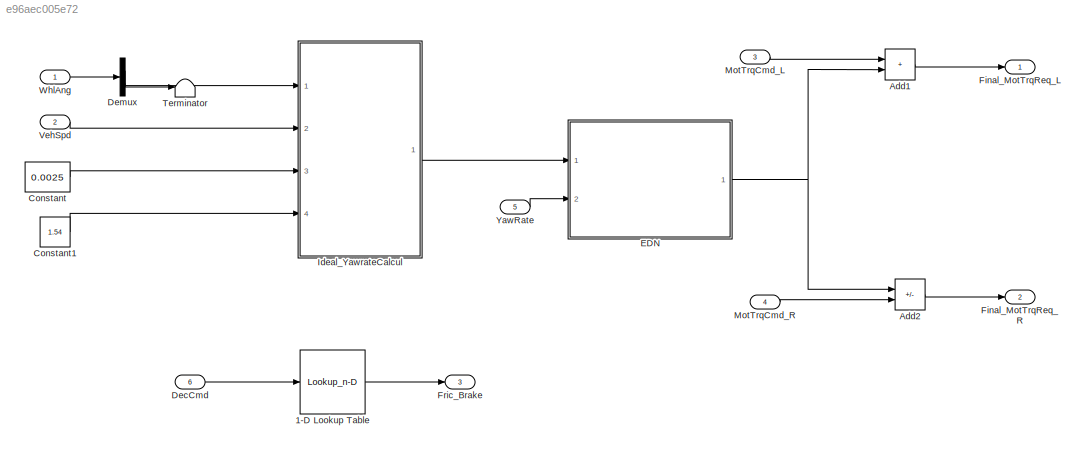
MODEL slx_e96aec005e72
KIND model
CONFIG AbsTol = auto
CONFIG EnableMultiTasking = off
CONFIG FixedStep = auto
CONFIG MaxStep = auto
CONFIG MinStep = auto
CONFIG RelTol = 1e-3
CONFIG SampleTimeConstraint = Unconstrained
CONFIG Solver = VariableStepAuto
CONFIG SolverName = VariableStepAuto
CONFIG StartTime = 0.0
CONFIG StopTime = 10.0
BLOCK [Lookup_n-D] 1-D Lookup Table
  BreakpointsForDimension1 = [0 , 0.2,0.4,0.6,0.8,1.0]
  InternalRulePriority = Speed
  NumberOfTableDimensions = 1
  Ports = [1, 1]
  RndMeth = Simplest
  Table = [0 , 0.2,0.4,0.6,0.8,1.0]*60
BLOCK [Sum] Add1
  IconShape = rectangular
  Ports = [2, 1]
BLOCK [Sum] Add2
  IconShape = rectangular
  Inputs = -+
  Ports = [2, 1]
BLOCK [Constant] Constant
  Value = 0.0025
BLOCK [Constant] Constant1
  Value = 1.54
BLOCK [Inport] DecCmd
  Port = 6
BLOCK [Demux] Demux
  Outputs = 2
  Ports = [1, 2]
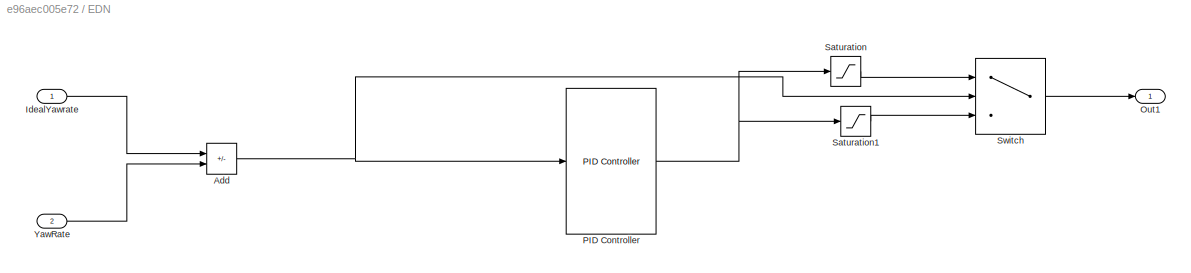
BLOCK [SubSystem] EDN
  Ports = [2, 1]
  RequestExecContextInheritance = off
BLOCK [Sum] EDN/Add
  IconShape = rectangular
  Inputs = +-
  Ports = [2, 1]
BLOCK [Inport] EDN/IdealYawrate
BLOCK [Outport] EDN/Out1
BLOCK [Reference] EDN/PID Controller  REF=simulink/Continuous/PID Controller
  Ports = [1, 1]
  SourceBlock = simulink/Continuous/PID Controller
  SourceProductBaseCode = SL
  SourceType = PID 1dof
BLOCK [Saturate] EDN/Saturation
  LowerLimit = 0
  UpperLimit = inf
BLOCK [Saturate] EDN/Saturation1
  LowerLimit = -inf
  UpperLimit = 0
BLOCK [Switch] EDN/Switch
  Criteria = u2 > Threshold
  InputSameDT = off
  SaturateOnIntegerOverflow = off
BLOCK [Inport] EDN/YawRate
  Port = 2
BLOCK [Outport] Final_MotTrqReq_L
BLOCK [Outport] Final_MotTrqReq_R
  Port = 2
BLOCK [Outport] Fric_Brake
  Port = 3
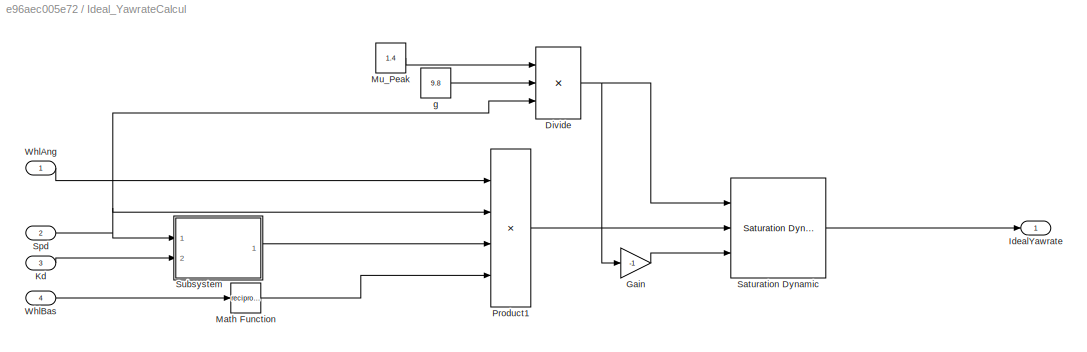
BLOCK [SubSystem] Ideal_YawrateCalcul
  Ports = [4, 1]
  RequestExecContextInheritance = off
BLOCK [Product] Ideal_YawrateCalcul/Divide
  Inputs = **/
  Ports = [3, 1]
BLOCK [Gain] Ideal_YawrateCalcul/Gain
  Gain = -1
BLOCK [Outport] Ideal_YawrateCalcul/IdealYawrate
BLOCK [Inport] Ideal_YawrateCalcul/Kd
  Port = 3
BLOCK [Math] Ideal_YawrateCalcul/Math Function
  Operator = reciprocal
  Ports = [1, 1]
BLOCK [Constant] Ideal_YawrateCalcul/Mu_Peak
  Value = 1.4
BLOCK [Product] Ideal_YawrateCalcul/Product1
  Inputs = 4
  Ports = [4, 1]
BLOCK [Reference] Ideal_YawrateCalcul/Saturation Dynamic  REF=simulink/Discontinuities/Saturation
Dynamic
  Ports = [3, 1]
  SourceBlock = simulink/Discontinuities/Saturation\nDynamic
  SourceProductBaseCode = SL
  SourceType = Saturation Dynamic
BLOCK [Inport] Ideal_YawrateCalcul/Spd
  Port = 2
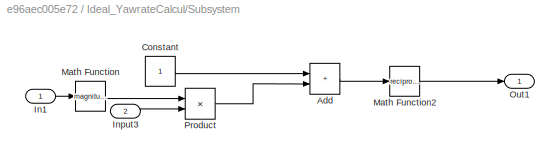
BLOCK [SubSystem] Ideal_YawrateCalcul/Subsystem
  Ports = [2, 1]
  RequestExecContextInheritance = off
BLOCK [Sum] Ideal_YawrateCalcul/Subsystem/Add
  IconShape = rectangular
  Ports = [2, 1]
BLOCK [Constant] Ideal_YawrateCalcul/Subsystem/Constant
BLOCK [Inport] Ideal_YawrateCalcul/Subsystem/In1
BLOCK [Inport] Ideal_YawrateCalcul/Subsystem/Input3
  Port = 2
BLOCK [Math] Ideal_YawrateCalcul/Subsystem/Math Function
  Operator = magnitude^2
  Ports = [1, 1]
BLOCK [Math] Ideal_YawrateCalcul/Subsystem/Math Function2
  Operator = reciprocal
  Ports = [1, 1]
BLOCK [Outport] Ideal_YawrateCalcul/Subsystem/Out1
BLOCK [Product] Ideal_YawrateCalcul/Subsystem/Product
  Ports = [2, 1]
BLOCK [Inport] Ideal_YawrateCalcul/WhlAng
BLOCK [Inport] Ideal_YawrateCalcul/WhlBas
  Port = 4
BLOCK [Constant] Ideal_YawrateCalcul/g
  Value = 9.8
BLOCK [Inport] MotTrqCmd_L
  Port = 3
BLOCK [Inport] MotTrqCmd_R
  Port = 4
BLOCK [Terminator] Terminator
BLOCK [Inport] VehSpd
  Port = 2
BLOCK [Inport] WhlAng
BLOCK [Inport] YawRate
  Port = 5
LINE 1-D Lookup Table:1 -> Fric_Brake:1
LINE Add1:1 -> Final_MotTrqReq_L:1
LINE Add2:1 -> Final_MotTrqReq_R:1
LINE Constant1:1 -> Ideal_YawrateCalcul:4
LINE Constant:1 -> Ideal_YawrateCalcul:3
LINE DecCmd:1 -> 1-D Lookup Table:1
LINE Demux:1 -> Ideal_YawrateCalcul:1
LINE Demux:2 -> Terminator:1
NET EDN/Add:1 -> EDN/PID Controller:1, EDN/Switch:2
LINE EDN/IdealYawrate:1 -> EDN/Add:1
NET EDN/PID Controller:1 -> EDN/Saturation1:1, EDN/Saturation:1
LINE EDN/Saturation1:1 -> EDN/Switch:3
LINE EDN/Saturation:1 -> EDN/Switch:1
LINE EDN/Switch:1 -> EDN/Out1:1
LINE EDN/YawRate:1 -> EDN/Add:2
NET EDN:1 -> Add1:2, Add2:1
NET Ideal_YawrateCalcul/Divide:1 -> Ideal_YawrateCalcul/Gain:1, Ideal_YawrateCalcul/Saturation Dynamic:1
LINE Ideal_YawrateCalcul/Gain:1 -> Ideal_YawrateCalcul/Saturation Dynamic:3
LINE Ideal_YawrateCalcul/Kd:1 -> Ideal_YawrateCalcul/Subsystem:2
LINE Ideal_YawrateCalcul/Math Function:1 -> Ideal_YawrateCalcul/Product1:4
LINE Ideal_YawrateCalcul/Mu_Peak:1 -> Ideal_YawrateCalcul/Divide:1
LINE Ideal_YawrateCalcul/Product1:1 -> Ideal_YawrateCalcul/Saturation Dynamic:2
LINE Ideal_YawrateCalcul/Saturation Dynamic:1 -> Ideal_YawrateCalcul/IdealYawrate:1
NET Ideal_YawrateCalcul/Spd:1 -> Ideal_YawrateCalcul/Divide:3, Ideal_YawrateCalcul/Product1:2, Ideal_YawrateCalcul/Subsystem:1
LINE Ideal_YawrateCalcul/Subsystem/Add:1 -> Ideal_YawrateCalcul/Subsystem/Math Function2:1
LINE Ideal_YawrateCalcul/Subsystem/Constant:1 -> Ideal_YawrateCalcul/Subsystem/Add:1
LINE Ideal_YawrateCalcul/Subsystem/In1:1 -> Ideal_YawrateCalcul/Subsystem/Math Function:1
LINE Ideal_YawrateCalcul/Subsystem/Input3:1 -> Ideal_YawrateCalcul/Subsystem/Product:2
LINE Ideal_YawrateCalcul/Subsystem/Math Function2:1 -> Ideal_YawrateCalcul/Subsystem/Out1:1
LINE Ideal_YawrateCalcul/Subsystem/Math Function:1 -> Ideal_YawrateCalcul/Subsystem/Product:1
LINE Ideal_YawrateCalcul/Subsystem/Product:1 -> Ideal_YawrateCalcul/Subsystem/Add:2
LINE Ideal_YawrateCalcul/Subsystem:1 -> Ideal_YawrateCalcul/Product1:3
LINE Ideal_YawrateCalcul/WhlAng:1 -> Ideal_YawrateCalcul/Product1:1
LINE Ideal_YawrateCalcul/WhlBas:1 -> Ideal_YawrateCalcul/Math Function:1
LINE Ideal_YawrateCalcul/g:1 -> Ideal_YawrateCalcul/Divide:2
LINE Ideal_YawrateCalcul:1 -> EDN:1
LINE MotTrqCmd_L:1 -> Add1:1
LINE MotTrqCmd_R:1 -> Add2:2
LINE VehSpd:1 -> Ideal_YawrateCalcul:2
LINE WhlAng:1 -> Demux:1
LINE YawRate:1 -> EDN:2
note: NET lines group one-source signal fan-out (src -> all destinations, sorted); 1:1 wires keep LINE
